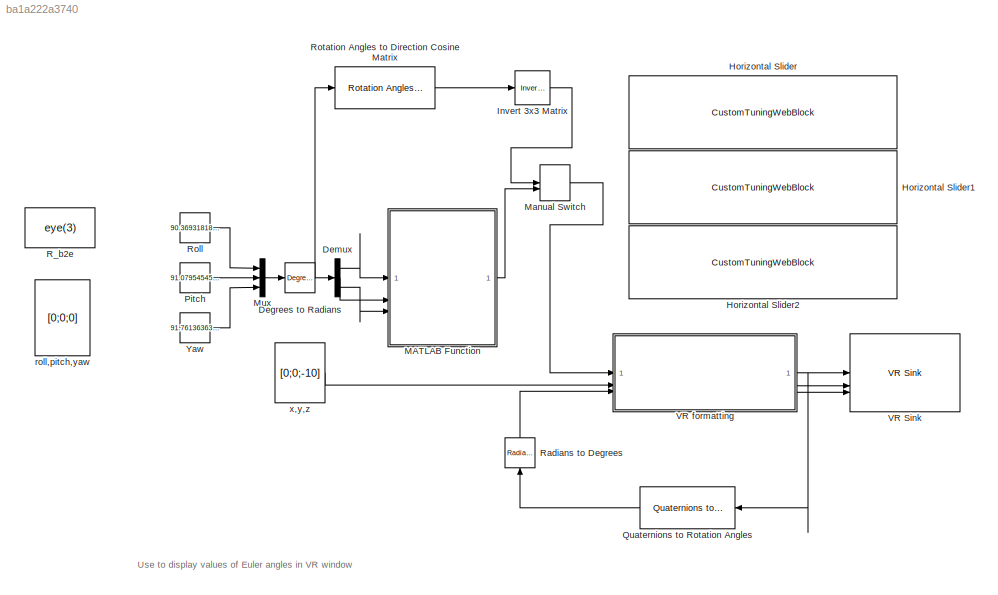
MODEL slx_ba1a222a3740
KIND model
CONFIG AbsTol = auto
CONFIG EnableMultiTasking = on
CONFIG FixedStep = 0.01
CONFIG MaxStep = auto
CONFIG MinStep = auto
CONFIG RelTol = 1e-3
CONFIG SampleTimeConstraint = Unconstrained
CONFIG SolverName = ode3
CONFIG StartTime = 0.0
CONFIG StopTime = 120
BLOCK [Reference] Degrees to Radians  REF=simulink_extras/Transformations/Degrees to
Radians
  SourceBlock = simulink_extras/Transformations/Degrees to\nRadians
  SourceType = DegreesToRadians
BLOCK [Demux] Demux
  Outputs = 3
BLOCK [CustomTuningWebBlock] Horizontal Slider
  Configuration = {"components":[{"name":"LinearScaleComponent","settings":{"bounds":{"max":180,"min":-180,"tickInterval":45},"internalTickHeightScaleFactor":0.5,"labelColor":[255,255,200],"labelFont":{"font":"Arial","fontSize":12},"labelOffset":0.05,"labelTransparency":1,"needleImage":{"size":[596,842],"src":"data:image\/svg+xml;base64,PD94bWwgdmVyc2lvbj0iMS4wIiBlbmNvZGluZz0idXRmLTgiPz4NCjwhLS0gR2VuZXJhdG9yOiBBZG9...<+5489ch>  <repeated x3 — deduplicated; at blocks: Horizontal Slider, Horizontal Slider1, Horizontal Slider2>
  LabelPosition = Bottom
  ShowInitialText = on
BLOCK [CustomTuningWebBlock] Horizontal Slider1
  LabelPosition = Bottom
  ShowInitialText = on
BLOCK [CustomTuningWebBlock] Horizontal Slider2
  LabelPosition = Bottom
  ShowInitialText = on
BLOCK [Reference] Invert 3x3 Matrix  REF=aerolibutil/Invert 
3x3 Matrix
  SourceBlock = aerolibutil/Invert \n3x3 Matrix
  SourceType = Invert 3x3 Matrix
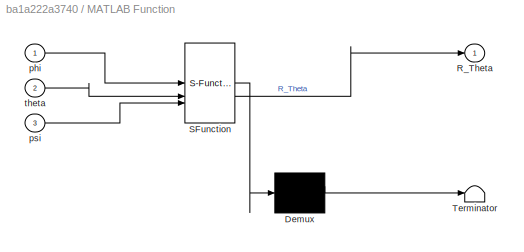
BLOCK [SubSystem] MATLAB Function
  ErrorFcn = Stateflow.Translate.translate
  PermitHierarchicalResolution = ExplicitOnly
  SFBlockType = MATLAB Function
  TreatAsAtomicUnit = on
BLOCK [Demux] MATLAB Function/ Demux 
  Outputs = 1
BLOCK [S-Function] MATLAB Function/ SFunction 
  EnableBusSupport = on
  FunctionName = sf_sfun
  PortCounts = [3 2]
  SFcnIsStateOwnerBlock = off
  SFunctionDeploymentMode = off
  Tag = Stateflow S-Function 2
BLOCK [Terminator] MATLAB Function/ Terminator 
BLOCK [Outport] MATLAB Function/R_Theta
BLOCK [Inport] MATLAB Function/phi
BLOCK [Inport] MATLAB Function/psi
  Port = 3
BLOCK [Inport] MATLAB Function/theta
  Port = 2
BLOCK [ManualSwitch] Manual Switch
BLOCK [Mux] Mux
  DisplayOption = bar
  Inputs = 3
BLOCK [Constant] Pitch
  Value = 91.07954545454544
BLOCK [Reference] Quaternions to Rotation Angles  REF=sharedtransform/Quaternions to Rotation Angles
  AttributesFormatString = Rotation Order: %<rotationOrder>
  LibrarySourceBlock = aerolibtransform2/Quaternions to Rotation Angles
  NameLocation = top
  SourceBlock = sharedtransform/Quaternions to Rotation Angles
  SourceType = Quat2Ang
BLOCK [Constant] R_b2e
  Value = eye(3)
  VectorParams1D = off
BLOCK [Reference] Radians to Degrees  REF=simulink_extras/Transformations/Radians
to Degrees
  NameLocation = right
  SourceBlock = simulink_extras/Transformations/Radians\nto Degrees
  SourceType = RadiansToDegrees
BLOCK [Constant] Roll
  Value = 90.36931818181819
BLOCK [Reference] Rotation Angles to Direction Cosine Matrix  REF=sharedtransform/Rotation Angles to
Direction Cosine Matrix
  AttributesFormatString = Rotation Order: %<rotationOrder>
  LibrarySourceBlock = aerolibtransform2/Rotation Angles to\nDirection Cosine Matrix
  SourceBlock = sharedtransform/Rotation Angles to\nDirection Cosine Matrix
  SourceType = Ang2DCM
BLOCK [Reference] VR Sink  REF=vrlib/VR Sink
  InstantiateOnLoad = on
  SourceBlock = vrlib/VR Sink
  SourceType = Virtual Reality Sink
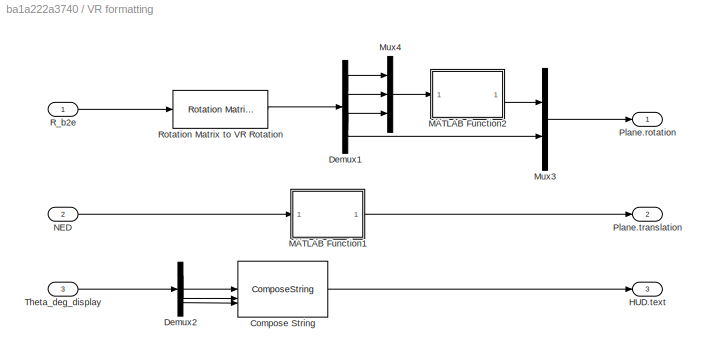
BLOCK [SubSystem] VR formatting
BLOCK [ComposeString] VR formatting/Compose String
  Format = 'Roll    : %7.2f deg\nPitch   : %7.2f deg\nYaw     : %7.2f deg'
BLOCK [Demux] VR formatting/Demux1
BLOCK [Demux] VR formatting/Demux2
  Outputs = 3
BLOCK [Outport] VR formatting/HUD.text
  Port = 3
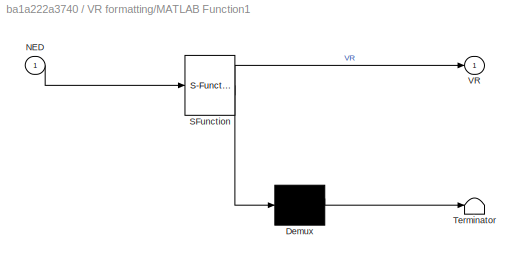
BLOCK [SubSystem] VR formatting/MATLAB Function1
  ErrorFcn = Stateflow.Translate.translate
  PermitHierarchicalResolution = ExplicitOnly
  SFBlockType = MATLAB Function
  TreatAsAtomicUnit = on
BLOCK [Demux] VR formatting/MATLAB Function1/ Demux 
  Outputs = 1
BLOCK [S-Function] VR formatting/MATLAB Function1/ SFunction 
  EnableBusSupport = on
  FunctionName = sf_sfun
  PortCounts = [1 2]
  SFcnIsStateOwnerBlock = off
  SFunctionDeploymentMode = off
  Tag = Stateflow S-Function 1
BLOCK [Terminator] VR formatting/MATLAB Function1/ Terminator 
BLOCK [Inport] VR formatting/MATLAB Function1/NED
BLOCK [Outport] VR formatting/MATLAB Function1/VR
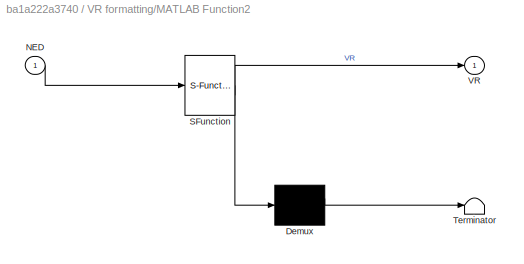
BLOCK [SubSystem] VR formatting/MATLAB Function2
  ErrorFcn = Stateflow.Translate.translate
  PermitHierarchicalResolution = ExplicitOnly
  SFBlockType = MATLAB Function
  TreatAsAtomicUnit = on
BLOCK [Demux] VR formatting/MATLAB Function2/ Demux 
  Outputs = 1
BLOCK [S-Function] VR formatting/MATLAB Function2/ SFunction 
  EnableBusSupport = on
  FunctionName = sf_sfun
  PortCounts = [1 2]
  SFcnIsStateOwnerBlock = off
  SFunctionDeploymentMode = off
  Tag = Stateflow S-Function 3
BLOCK [Terminator] VR formatting/MATLAB Function2/ Terminator 
BLOCK [Inport] VR formatting/MATLAB Function2/NED
BLOCK [Outport] VR formatting/MATLAB Function2/VR
BLOCK [Mux] VR formatting/Mux3
  DisplayOption = bar
  Inputs = 2
BLOCK [Mux] VR formatting/Mux4
  DisplayOption = bar
  Inputs = 3
BLOCK [Inport] VR formatting/NED
  Port = 2
BLOCK [Outport] VR formatting/Plane.rotation
BLOCK [Outport] VR formatting/Plane.translation
  Port = 2
BLOCK [Inport] VR formatting/R_b2e
BLOCK [Reference] VR formatting/Rotation Matrix to VR Rotation  REF=vrlib/Utilities/Rotation Matrix
to VR Rotation
  SourceBlock = vrlib/Utilities/Rotation Matrix\nto VR Rotation
  SourceType = Rotation Matrix to VR Rotation
BLOCK [Inport] VR formatting/Theta_deg_display
  Port = 3
BLOCK [Constant] Yaw
  Value = 91.76136363636363
BLOCK [Constant] roll,pitch,yaw
  Value = [0;0;0]
  VectorParams1D = off
BLOCK [Constant] x,y,z
  Value = [0;0;-10]
  VectorParams1D = off
ANNOTATION (root): Use to display values of Euler angles in VR window
NET Degrees to Radians:1 -> Demux:1, Rotation Angles to Direction Cosine Matrix:1
LINE Demux:1 -> MATLAB Function:1
LINE Demux:2 -> MATLAB Function:2
LINE Demux:3 -> MATLAB Function:3
LINE Invert 3x3 Matrix:1 -> Manual Switch:1
LINE MATLAB Function:1 -> Manual Switch:2
LINE Manual Switch:1 -> VR formatting:1
LINE Mux:1 -> Degrees to Radians:1
LINE Pitch:1 -> Mux:2
LINE Quaternions to Rotation Angles:1 -> Radians to Degrees:1
LINE Radians to Degrees:1 -> VR formatting:3
LINE Roll:1 -> Mux:1
LINE Rotation Angles to Direction Cosine Matrix:1 -> Invert 3x3 Matrix:1
LINE VR formatting/Compose String:1 -> VR formatting/HUD.text:1
LINE VR formatting/Demux1:1 -> VR formatting/Mux4:1
LINE VR formatting/Demux1:2 -> VR formatting/Mux4:2
LINE VR formatting/Demux1:3 -> VR formatting/Mux4:3
LINE VR formatting/Demux1:4 -> VR formatting/Mux3:2
LINE VR formatting/Demux2:1 -> VR formatting/Compose String:1
LINE VR formatting/Demux2:2 -> VR formatting/Compose String:2
LINE VR formatting/Demux2:3 -> VR formatting/Compose String:3
LINE VR formatting/MATLAB Function1:1 -> VR formatting/Plane.translation:1
LINE VR formatting/MATLAB Function2:1 -> VR formatting/Mux3:1
LINE VR formatting/Mux3:1 -> VR formatting/Plane.rotation:1
LINE VR formatting/Mux4:1 -> VR formatting/MATLAB Function2:1
LINE VR formatting/NED:1 -> VR formatting/MATLAB Function1:1
LINE VR formatting/R_b2e:1 -> VR formatting/Rotation Matrix to VR Rotation:1
LINE VR formatting/Rotation Matrix to VR Rotation:1 -> VR formatting/Demux1:1
LINE VR formatting/Theta_deg_display:1 -> VR formatting/Demux2:1
NET VR formatting:1 -> Quaternions to Rotation Angles:1, VR Sink:1
LINE VR formatting:2 -> VR Sink:2
LINE VR formatting:3 -> VR Sink:3
LINE Yaw:1 -> Mux:3
LINE x,y,z:1 -> VR formatting:2
note: NET lines group one-source signal fan-out (src -> all destinations, sorted); 1:1 wires keep LINE
CHART MATLAB Function states=1 transitions=1
  STATE_LABEL 'eML_blk_kernel()'
  STATE_LABEL 'SCRIPT:\nfunction R_Theta = Rot(phi, theta, psi)\n\nR_x = [1 0        0;\n       0 cos(phi) -sin(phi);\n       0 sin(phi) cos(phi)];\n\nR_y = [cos(theta)  0 sin(theta);\n       0           1 0;\n       -sin(theta) 0 cos(theta)];\n\nR_z = [cos(psi) -sin(psi) 0;\n       sin(psi) cos(psi)  0;\n       0        0         1];\n\nR_Theta = R_z * R_y * R_x;\n'
CHART VR formatting/MATLAB Function2 states=1 transitions=1
  STATE_LABEL 'eML_blk_kernel()'
  STATE_LABEL 'SCRIPT:\nfunction VR = NED2VR(NED)\n\nx = NED(1); % north\ny = NED(2); % east \nz = NED(3); % down\n\nVR = [ -y ; -z ; x ];\n'
CHART VR formatting/MATLAB Function1 states=1 transitions=1
  STATE_LABEL 'eML_blk_kernel()'
  STATE_LABEL 'SCRIPT:\nfunction VR = NED2VR(NED)\n\nx = NED(1); % north\ny = NED(2); % east \nz = NED(3); % down\n\nVR = [ -y ; -z ; x ];\n'
CHART  states=0 transitions=0
CHART  states=0 transitions=0
CHART  states=0 transitions=0
